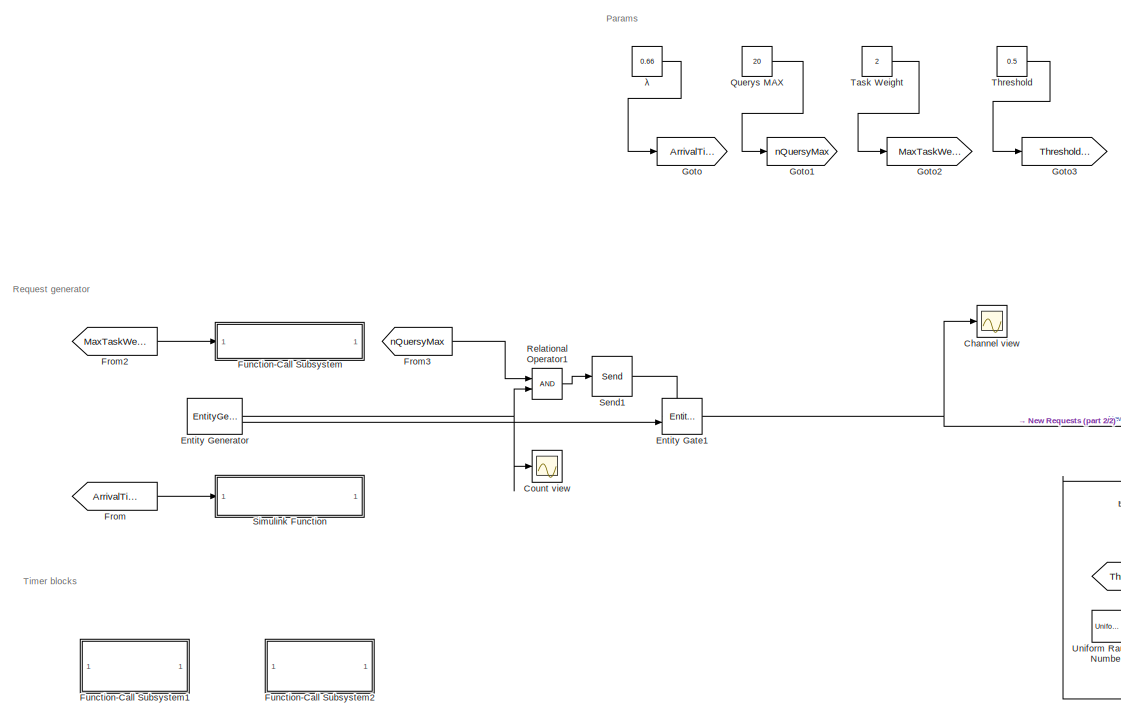
[diagram: root canvas - part 1/2, left side, full height]
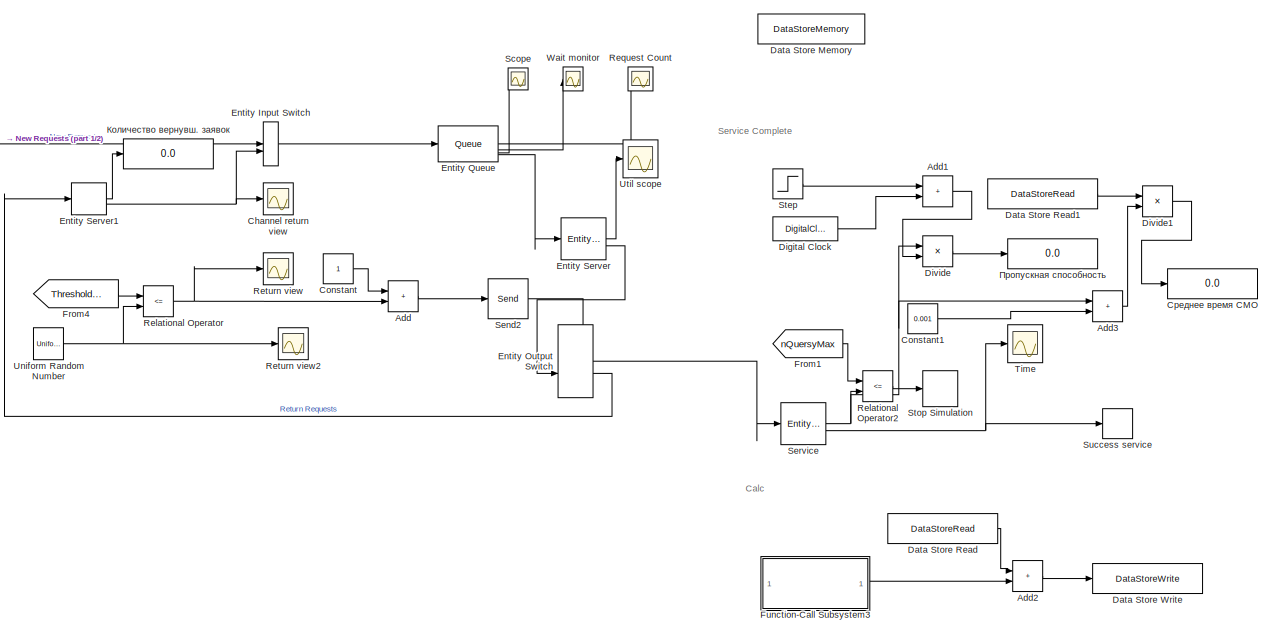
[diagram: root canvas - part 2/2, middle right region]
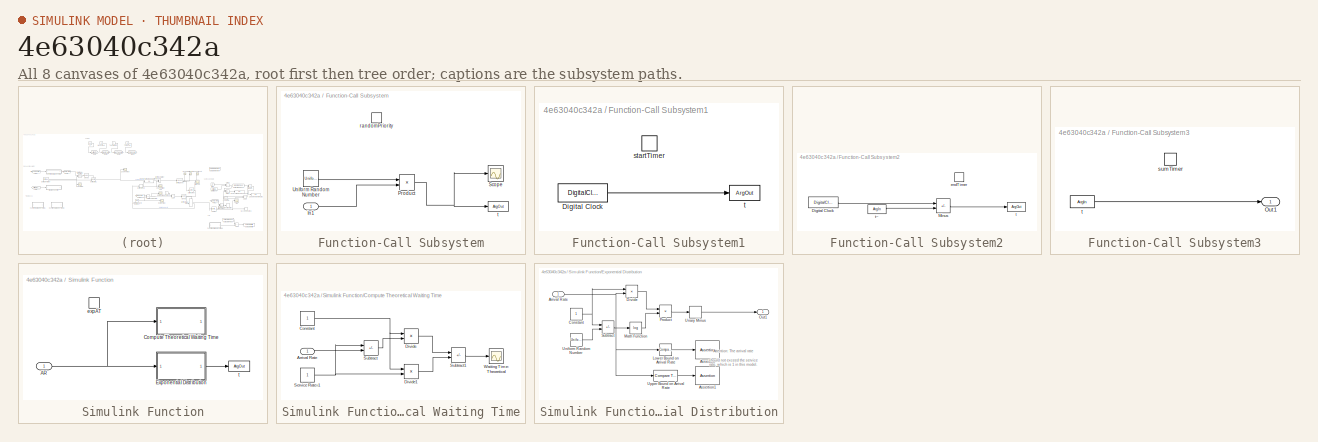
[diagram: thumbnail index - all 8 canvases of the model, root first then tree order]
MODEL slx_4e63040c342a
KIND model
CONFIG AbsTol = auto
CONFIG EnableMultiTasking = off
CONFIG FixedStep = auto
CONFIG MaxStep = auto
CONFIG MinStep = auto
CONFIG RelTol = 1e-3
CONFIG SampleTimeConstraint = Unconstrained
CONFIG SolverName = VariableStepAuto
CONFIG StartTime = 0.0
CONFIG StopTime = 60.0
BLOCK [Constant]  Querys MAX
  SampleTime = -1
  Value = 20
BLOCK [Constant]  λ
  SampleTime = -1
  Value = 0.66
BLOCK [Sum] Add
  IconShape = rectangular
BLOCK [Sum] Add1
  IconShape = rectangular
BLOCK [Sum] Add2
  IconShape = rectangular
BLOCK [Sum] Add3
  IconShape = rectangular
BLOCK [Scope] Channel return view
  Floating = off
  NumInputPorts = 1
  ScopeSpecificationString = Simulink.scopes.TimeScopeBlockCfg('CurrentConfiguration', extmgr.ConfigurationSet(extmgr.Configuration('Core','General UI',true),extmgr.Configuration('Core','Source UI',true),extmgr.Configuration('Sources','WiredSimulink',true,'DataLoggingVariableName','ScopeData7'),extmgr.Configuration('Visuals','Time Domain',true,'SerializedDisplays',{struct('MinYLimReal','-3.43386','MaxYLimReal','30.90477','YLa...<+1657ch>
BLOCK [Scope] Channel view
  Floating = off
  NumInputPorts = 1
  ScopeSpecificationString = Simulink.scopes.TimeScopeBlockCfg('CurrentConfiguration', extmgr.ConfigurationSet(extmgr.Configuration('Core','General UI',true),extmgr.Configuration('Core','Source UI',true),extmgr.Configuration('Sources','WiredSimulink',true,'DataLoggingVariableName','ScopeData4'),extmgr.Configuration('Visuals','Time Domain',true,'InputProcessing','FrameProcessing','SerializedDisplays',{struct('MinYLimReal','-4....<+1618ch>
BLOCK [Constant] Constant
  SampleTime = -1
BLOCK [Constant] Constant1
  Value = 0.001
BLOCK [Scope] Count view
  Floating = off
  NumInputPorts = 1
  ScopeSpecificationString = Simulink.scopes.TimeScopeBlockCfg('CurrentConfiguration', extmgr.ConfigurationSet(extmgr.Configuration('Core','General UI',true),extmgr.Configuration('Core','Source UI',true),extmgr.Configuration('Sources','WiredSimulink',true,'DataLoggingVariableName','ScopeData5'),extmgr.Configuration('Visuals','Time Domain',true,'SerializedDisplays',{struct('MinYLimReal','-1.75','MaxYLimReal','25.75','YLabelRea...<+1452ch>
BLOCK [DataStoreMemory] Data Store Memory
  DataStoreName = AVGSMO
  InitialValue = 0.1
  ShowAdditionalParam = off
  WriteAfterWriteMsg = warning
BLOCK [DataStoreRead] Data Store Read
  DataStoreName = AVGSMO
  IndexOptions = Index vector (dialog)
  Indices = 1
  OutputSizes = 1
BLOCK [DataStoreRead] Data Store Read1
  DataStoreName = AVGSMO
  IndexOptions = Index vector (dialog)
  Indices = 1
  OutputSizes = 1
BLOCK [DataStoreWrite] Data Store Write
  DataStoreName = AVGSMO
  IndexOptions = Index vector (dialog)
  Indices = 1
  OutputSizes = 1
BLOCK [DigitalClock] Digital Clock
BLOCK [Product] Divide
  Inputs = */
BLOCK [Product] Divide1
  Inputs = */
BLOCK [EntityGate] Entity Gate1
  InputPortMap = u0,u1
  InputPortMessageModes = m,m
  OpenGateAtSimulationStart = on
  OperatingMode = Release gate
  OutputPortMap = o0
  OutputPortMessageModes = m
BLOCK [EntityGenerator] Entity Generator
  AttributeInitialValue = 0|1|1
  AttributeName = entity|ServiceTime|SMOTime
  EntityType = Structured
  EntityTypeName = Entity
  GenerateAction = entity.SMOTime = startTimer();
  IntergenerationTimeAction = dt = expAT();
  NumberEntitiesDeparted = on
  OutputPortMap = o0,o3
  OutputPortMessageModes = n,m
  Period = 5
  TimeSource = MATLAB action
BLOCK [EntityInputSwitch] Entity Input Switch
  InputPortMap = u1,u2
  InputPortMessageModes = m,m
  OutputPortMap = o0
  OutputPortMessageModes = m
BLOCK [EntityOutputSwitch] Entity Output Switch
  InputPortMap = u0,u1
  InputPortMessageModes = m,m
  OutputPortMap = o0,o1
  OutputPortMessageModes = m,m
  SwitchAttributeName = Attribute1
  SwitchingCriterion = From control port
BLOCK [Queue] Entity Queue
  AverageQueueLength = on
  AverageWait = on
  Capacity = inf
  InputPortMap = u0
  InputPortMessageModes = m
  NumberEntitiesInBlock = on
  OutputPortMap = o1,o2,o3,o5
  OutputPortMessageModes = n,n,n,m
  PrioritySource = entitySys.priority
  SortingDirection = Descending
BLOCK [EntityServer] Entity Server
  Capacity = 1
  InputPortMap = u2
  InputPortMessageModes = m
  OutputPortMap = o5,o9
  OutputPortMessageModes = n,m
  ServiceTimeAction = dt = entitySys.priority;
  ServiceTimeSource = Attribute
  Utilization = on
BLOCK [EntityServer] Entity Server1
  Capacity = 1
  InputPortMap = u2
  InputPortMessageModes = m
  NumberEntitiesDeparted = on
  OutputPortMap = o0,o9
  OutputPortMessageModes = n,m
  ServiceTimeValue = 0
BLOCK [From] From
  GotoTag = ArrivalTime
BLOCK [From] From1
  GotoTag = nQuersyMax
BLOCK [From] From2
  GotoTag = MaxTaskWeight
BLOCK [From] From3
  GotoTag = nQuersyMax
BLOCK [From] From4
  GotoTag = ThresholdVal
BLOCK [SubSystem] Function-Call Subsystem
  TreatAsAtomicUnit = on
BLOCK [Inport] Function-Call Subsystem/In1
BLOCK [Product] Function-Call Subsystem/Product
BLOCK [Scope] Function-Call Subsystem/Scope
  Floating = off
  NumInputPorts = 1
  ScopeSpecificationString = Simulink.scopes.TimeScopeBlockCfg('CurrentConfiguration', extmgr.ConfigurationSet(extmgr.Configuration('Core','General UI',true),extmgr.Configuration('Core','Source UI',true),extmgr.Configuration('Sources','WiredSimulink',true,'DataLoggingVariableName','ScopeData3'),extmgr.Configuration('Visuals','Time Domain',true,'SerializedDisplays',{struct('MinYLimReal','-24.62549','MaxYLimReal','24.44194','YL...<+1461ch>
BLOCK [UniformRandomNumber] Function-Call Subsystem/Uniform Random Number
  Minimum = 0
  Seed = 12345
  VectorParams1D = off
BLOCK [TriggerPort] Function-Call Subsystem/randomPriority
  FunctionName = randomPriority
  IsSimulinkFunction = on
  StatesWhenEnabling = held
  TriggerType = function-call
  VariantControl = (inherit)
BLOCK [ArgOut] Function-Call Subsystem/t
  ArgumentName = t
  DisableCoverage = on
BLOCK [SubSystem] Function-Call Subsystem1
  TreatAsAtomicUnit = on
BLOCK [DigitalClock] Function-Call Subsystem1/Digital Clock
  SampleTime = -1
BLOCK [TriggerPort] Function-Call Subsystem1/startTimer
  FunctionName = startTimer
  IsSimulinkFunction = on
  StatesWhenEnabling = held
  TriggerType = function-call
  VariantControl = (inherit)
BLOCK [ArgOut] Function-Call Subsystem1/t
  ArgumentName = t
  DisableCoverage = on
BLOCK [SubSystem] Function-Call Subsystem2
  TreatAsAtomicUnit = on
BLOCK [DigitalClock] Function-Call Subsystem2/Digital Clock
  SampleTime = -1
BLOCK [Sum] Function-Call Subsystem2/Minus
  IconShape = rectangular
  Inputs = +-
BLOCK [TriggerPort] Function-Call Subsystem2/endTimer
  FunctionName = endTimer
  IsSimulinkFunction = on
  StatesWhenEnabling = held
  TriggerType = function-call
  VariantControl = (inherit)
BLOCK [ArgOut] Function-Call Subsystem2/t
  ArgumentName = t
  DisableCoverage = on
BLOCK [ArgIn] Function-Call Subsystem2/t~
  ArgumentName = t
BLOCK [SubSystem] Function-Call Subsystem3
  TreatAsAtomicUnit = on
BLOCK [Outport] Function-Call Subsystem3/Out1
BLOCK [TriggerPort] Function-Call Subsystem3/sumTimer
  FunctionName = sumTimer
  IsSimulinkFunction = on
  StatesWhenEnabling = held
  TriggerType = function-call
  VariantControl = (inherit)
BLOCK [ArgIn] Function-Call Subsystem3/t
  ArgumentName = t
BLOCK [Goto] Goto
  GotoTag = ArrivalTime
  IconDisplay = Tag and signal name
BLOCK [Goto] Goto1
  GotoTag = nQuersyMax
  IconDisplay = Tag and signal name
BLOCK [Goto] Goto2
  GotoTag = MaxTaskWeight
  IconDisplay = Tag and signal name
BLOCK [Goto] Goto3
  GotoTag = ThresholdVal
  IconDisplay = Tag and signal name
BLOCK [RelationalOperator] Relational Operator
  InputSameDT = off
  Operator = <=
  OutDataTypeStr = boolean
  RndMeth = Simplest
BLOCK [RelationalOperator] Relational Operator1
  InputSameDT = off
  OutDataTypeStr = boolean
  RndMeth = Simplest
BLOCK [RelationalOperator] Relational Operator2
  InputSameDT = off
  Operator = <=
  OutDataTypeStr = boolean
  RndMeth = Simplest
BLOCK [Scope] Request Count
  Floating = off
  NumInputPorts = 1
  ScopeSpecificationString = Simulink.scopes.TimeScopeBlockCfg('CurrentConfiguration', extmgr.ConfigurationSet(extmgr.Configuration('Core','General UI',true,'ShowMainToolbar',false,'ShowStatusbar',false),extmgr.Configuration('Core','Source UI',true),extmgr.Configuration('Sources','WiredSimulink',true,'DataLoggingVariableName','ScopeData2'),extmgr.Configuration('Visuals','Time Domain',true,'SerializedDisplays',{struct('MinYLim...<+1570ch>
BLOCK [Scope] Return view
  Floating = off
  NumInputPorts = 1
  ScopeSpecificationString = Simulink.scopes.TimeScopeBlockCfg('CurrentConfiguration', extmgr.ConfigurationSet(extmgr.Configuration('Core','General UI',true),extmgr.Configuration('Core','Source UI',true),extmgr.Configuration('Sources','WiredSimulink',true,'DataLoggingVariableName','ScopeData8'),extmgr.Configuration('Visuals','Time Domain',true,'SerializedDisplays',{struct('MinYLimReal','-0.125','MaxYLimReal','1.125','YLabelRe...<+1506ch>
BLOCK [Scope] Return view2
  Floating = off
  NumInputPorts = 1
  ScopeSpecificationString = Simulink.scopes.TimeScopeBlockCfg('CurrentConfiguration', extmgr.ConfigurationSet(extmgr.Configuration('Core','General UI',true),extmgr.Configuration('Core','Source UI',true),extmgr.Configuration('Sources','WiredSimulink',true,'DataLoggingVariableName','ScopeData10'),extmgr.Configuration('Visuals','Time Domain',true,'SerializedDisplays',{struct('MinYLimReal','-0.08214','MaxYLimReal','1.1087','YLab...<+1488ch>
BLOCK [Scope] Scope
  Floating = off
  NumInputPorts = 1
  ScopeSpecificationString = Simulink.scopes.TimeScopeBlockCfg('CurrentConfiguration', extmgr.ConfigurationSet(extmgr.Configuration('Core','General UI',true),extmgr.Configuration('Core','Source UI',true),extmgr.Configuration('Sources','WiredSimulink',true,'DataLoggingVariableName','ScopeData12'),extmgr.Configuration('Visuals','Time Domain',true,'SerializedDisplays',{struct('MinYLimReal','-0.18012','MaxYLimReal','1.6211','YLab...<+1459ch>
BLOCK [Send] Send1
  InputPortMap = u1
  OutputPortMessageModes = m
BLOCK [Send] Send2
  InputPortMap = u1
  OutputPortMessageModes = m
BLOCK [EntityServer] Service
  Capacity = 1
  EntryAction = entity.SMOTime = endTimer(entity.SMOTime);
  InputPortMap = u2
  InputPortMessageModes = m
  NumberEntitiesDeparted = on
  OutputPortMap = o0,o9
  OutputPortMessageModes = n,m
  ServiceCompleteAction = sumTimer(entity.SMOTime)
  ServiceTimeValue = 0
BLOCK [SubSystem] Simulink Function
  TreatAsAtomicUnit = on
BLOCK [Inport] Simulink Function/AR
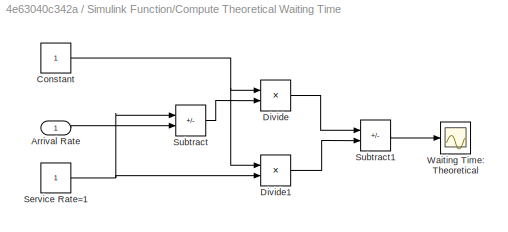
BLOCK [SubSystem] Simulink Function/Compute Theoretical Waiting Time
BLOCK [Inport] Simulink Function/Compute Theoretical Waiting Time/Arrival Rate
BLOCK [Constant] Simulink Function/Compute Theoretical Waiting Time/Constant
BLOCK [Product] Simulink Function/Compute Theoretical Waiting Time/Divide
  Inputs = */
BLOCK [Product] Simulink Function/Compute Theoretical Waiting Time/Divide1
  Inputs = */
BLOCK [Constant] Simulink Function/Compute Theoretical Waiting Time/Service Rate=1
  NameLocation = right
BLOCK [Sum] Simulink Function/Compute Theoretical Waiting Time/Subtract
  IconShape = rectangular
  Inputs = +-
BLOCK [Sum] Simulink Function/Compute Theoretical Waiting Time/Subtract1
  IconShape = rectangular
  Inputs = +-
BLOCK [Scope] Simulink Function/Compute Theoretical Waiting Time/Waiting Time: Theoretical
  Floating = off
  NumInputPorts = 1
  ScopeSpecificationString = Simulink.scopes.TimeScopeBlockCfg('CurrentConfiguration', extmgr.ConfigurationSet(extmgr.Configuration('Core','General UI',true,'ShowMainToolbar',false,'ShowStatusbar',false),extmgr.Configuration('Core','Source UI',true),extmgr.Configuration('Sources','WiredSimulink',true,'DataLoggingVariableName','ScopeData2'),extmgr.Configuration('Visuals','Time Domain',true,'SerializedDisplays',{struct('MinYLim...<+1456ch>
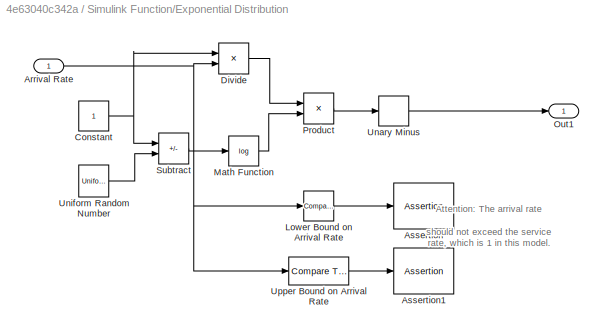
BLOCK [SubSystem] Simulink Function/Exponential Distribution
BLOCK [Inport] Simulink Function/Exponential Distribution/Arrival Rate
BLOCK [Assertion] Simulink Function/Exponential Distribution/Assertion
BLOCK [Assertion] Simulink Function/Exponential Distribution/Assertion1
BLOCK [Constant] Simulink Function/Exponential Distribution/Constant
BLOCK [Product] Simulink Function/Exponential Distribution/Divide
  Inputs = */
BLOCK [Reference] Simulink Function/Exponential Distribution/Lower Bound on Arrival Rate  REF=simulink/Logic and Bit
Operations/Compare
To Constant
  SourceBlock = simulink/Logic and Bit\nOperations/Compare\nTo Constant
  SourceType = Compare To Constant
BLOCK [Math] Simulink Function/Exponential Distribution/Math Function
  Operator = log
  SignedPower = on
BLOCK [Outport] Simulink Function/Exponential Distribution/Out1
BLOCK [Product] Simulink Function/Exponential Distribution/Product
  RndMeth = Zero
BLOCK [Sum] Simulink Function/Exponential Distribution/Subtract
  IconShape = rectangular
  Inputs = +-
BLOCK [UnaryMinus] Simulink Function/Exponential Distribution/Unary Minus
BLOCK [UniformRandomNumber] Simulink Function/Exponential Distribution/Uniform Random Number
  Minimum = 0
  Seed = 12345
BLOCK [Reference] Simulink Function/Exponential Distribution/Upper Bound on Arrival Rate   REF=simulink/Logic and Bit
Operations/Compare
To Constant
  SourceBlock = simulink/Logic and Bit\nOperations/Compare\nTo Constant
  SourceType = Compare To Constant
BLOCK [TriggerPort] Simulink Function/expAT
  FunctionName = expAT
  IsSimulinkFunction = on
  StatesWhenEnabling = held
  TriggerType = function-call
  VariantControl = Variant
BLOCK [ArgOut] Simulink Function/t
  ArgumentName = t
  DisableCoverage = on
BLOCK [Step] Step
  Before = 1
  SampleTime = 0
BLOCK [Stop] Stop Simulation
BLOCK [EntityTerminator] Success service
  InputPortMap = u0
  InputPortMessageModes = m
BLOCK [Constant] Task Weight
  SampleTime = -1
  Value = 2
BLOCK [Constant] Threshold
  SampleTime = -1
  Value = 0.5
BLOCK [Scope] Time
  Floating = off
  NumInputPorts = 1
  ScopeSpecificationString = Simulink.scopes.TimeScopeBlockCfg('CurrentConfiguration', extmgr.ConfigurationSet(extmgr.Configuration('Core','General UI',true,'ShowMainToolbar',false,'ShowStatusbar',false),extmgr.Configuration('Core','Source UI',true),extmgr.Configuration('Sources','WiredSimulink',true,'DataLoggingVariableName','ScopeData9'),extmgr.Configuration('Visuals','Time Domain',true,'SerializedDisplays',{struct('MinYLim...<+1780ch>
BLOCK [UniformRandomNumber] Uniform Random Number
  Minimum = 0
  SampleTime = 0
  Seed = 3748724
  VectorParams1D = off
BLOCK [Scope] Util scope
  Floating = off
  NumInputPorts = 1
  ScopeSpecificationString = Simulink.scopes.TimeScopeBlockCfg('CurrentConfiguration', extmgr.ConfigurationSet(extmgr.Configuration('Core','General UI',true,'ShowMainToolbar',false,'ShowStatusbar',false),extmgr.Configuration('Core','Source UI',true),extmgr.Configuration('Sources','WiredSimulink',true,'DataLoggingVariableName','ScopeData6'),extmgr.Configuration('Visuals','Time Domain',true,'SerializedDisplays',{struct('MinYLim...<+1581ch>
BLOCK [Scope] Wait monitor
  Floating = off
  NumInputPorts = 1
  ScopeSpecificationString = Simulink.scopes.TimeScopeBlockCfg('CurrentConfiguration', extmgr.ConfigurationSet(extmgr.Configuration('Core','General UI',true,'ShowMainToolbar',false,'ShowStatusbar',false),extmgr.Configuration('Core','Source UI',true),extmgr.Configuration('Sources','WiredSimulink',true,'DataLoggingVariableName','ScopeData1'),extmgr.Configuration('Visuals','Time Domain',true,'SerializedDisplays',{struct('MinYLim...<+1582ch>
BLOCK [Display] Количество вернувш. заявок
  Decimation = 1
BLOCK [Display] Пропускная способность
  Decimation = 1
BLOCK [Display] Среднее время СМО
  Decimation = 1
ANNOTATION (root): Calc
ANNOTATION (root): Params
ANNOTATION (root): Request generator
ANNOTATION (root): Service Complete
ANNOTATION (root): Timer blocks
ANNOTATION Simulink Function/Exponential Distribution: Attention: The arrival rate should not exceed the service rate, which is 1 in this model.
LINE  Querys MAX:1 -> Goto1:1
LINE  λ:1 -> Goto:1
LINE Add1:1 -> Divide:2
LINE Add2:1 -> Data Store Write:1
LINE Add3:1 -> Divide1:2
LINE Add:1 -> Send2:1
LINE Constant1:1 -> Add3:2
LINE Constant:1 -> Add:1
LINE Data Store Read1:1 -> Divide1:1
LINE Data Store Read:1 -> Add2:1
LINE Digital Clock:1 -> Add1:2
LINE Divide1:1 -> Среднее время СМО:1
LINE Divide:1 -> Пропускная способность:1
NET Entity Gate1:1 -> Channel view:1, Entity Input Switch:1
NET Entity Generator:1 -> Count view:1, Relational Operator1:2
LINE Entity Generator:2 -> Entity Gate1:2
LINE Entity Input Switch:1 -> Entity Queue:1
LINE Entity Output Switch:1 -> Service:1
LINE Entity Output Switch:2 -> Entity Server1:1
LINE Entity Queue:1 -> Request Count:1
LINE Entity Queue:2 -> Wait monitor:1
LINE Entity Queue:3 -> Scope:1
LINE Entity Queue:4 -> Entity Server:1
LINE Entity Server1:1 -> Количество вернувш. заявок:1
NET Entity Server1:2 -> Channel return view:1, Entity Input Switch:2
LINE Entity Server:1 -> Util scope:1
LINE Entity Server:2 -> Entity Output Switch:2
LINE From1:1 -> Relational Operator2:1
LINE From2:1 -> Function-Call Subsystem:1
LINE From3:1 -> Relational Operator1:1
LINE From4:1 -> Relational Operator:1
LINE From:1 -> Simulink Function:1
LINE Function-Call Subsystem/In1:1 -> Function-Call Subsystem/Product:2
NET Function-Call Subsystem/Product:1 -> Function-Call Subsystem/Scope:1, Function-Call Subsystem/t:1
LINE Function-Call Subsystem/Uniform Random Number:1 -> Function-Call Subsystem/Product:1
LINE Function-Call Subsystem1/Digital Clock:1 -> Function-Call Subsystem1/t:1
LINE Function-Call Subsystem2/Digital Clock:1 -> Function-Call Subsystem2/Minus:1
LINE Function-Call Subsystem2/Minus:1 -> Function-Call Subsystem2/t:1
LINE Function-Call Subsystem2/t~:1 -> Function-Call Subsystem2/Minus:2
LINE Function-Call Subsystem3/t:1 -> Function-Call Subsystem3/Out1:1
LINE Function-Call Subsystem3:1 -> Add2:2
LINE Relational Operator1:1 -> Send1:1
LINE Relational Operator2:1 -> Stop Simulation:1
NET Relational Operator:1 -> Add:2, Return view:1
LINE Send1:1 -> Entity Gate1:1
LINE Send2:1 -> Entity Output Switch:1
NET Service:1 -> Add3:1, Divide:1, Relational Operator2:2
NET Service:2 -> Success service:1, Time:1
NET Simulink Function/AR:1 -> Simulink Function/Compute Theoretical Waiting Time:1, Simulink Function/Exponential Distribution:1
LINE Simulink Function/Compute Theoretical Waiting Time/Arrival Rate:1 -> Simulink Function/Compute Theoretical Waiting Time/Subtract:2
NET Simulink Function/Compute Theoretical Waiting Time/Constant:1 -> Simulink Function/Compute Theoretical Waiting Time/Divide1:1, Simulink Function/Compute Theoretical Waiting Time/Divide:1
LINE Simulink Function/Compute Theoretical Waiting Time/Divide1:1 -> Simulink Function/Compute Theoretical Waiting Time/Subtract1:2
LINE Simulink Function/Compute Theoretical Waiting Time/Divide:1 -> Simulink Function/Compute Theoretical Waiting Time/Subtract1:1
NET Simulink Function/Compute Theoretical Waiting Time/Service Rate=1:1 -> Simulink Function/Compute Theoretical Waiting Time/Divide1:2, Simulink Function/Compute Theoretical Waiting Time/Subtract:1
LINE Simulink Function/Compute Theoretical Waiting Time/Subtract1:1 -> Simulink Function/Compute Theoretical Waiting Time/Waiting Time: Theoretical:1
LINE Simulink Function/Compute Theoretical Waiting Time/Subtract:1 -> Simulink Function/Compute Theoretical Waiting Time/Divide:2
NET Simulink Function/Exponential Distribution/Arrival Rate:1 -> Simulink Function/Exponential Distribution/Divide:2, Simulink Function/Exponential Distribution/Lower Bound on Arrival Rate:1, Simulink Function/Exponential Distribution/Upper Bound on Arrival Rate :1
NET Simulink Function/Exponential Distribution/Constant:1 -> Simulink Function/Exponential Distribution/Divide:1, Simulink Function/Exponential Distribution/Subtract:1
LINE Simulink Function/Exponential Distribution/Divide:1 -> Simulink Function/Exponential Distribution/Product:1
LINE Simulink Function/Exponential Distribution/Lower Bound on Arrival Rate:1 -> Simulink Function/Exponential Distribution/Assertion:1
LINE Simulink Function/Exponential Distribution/Math Function:1 -> Simulink Function/Exponential Distribution/Product:2
LINE Simulink Function/Exponential Distribution/Product:1 -> Simulink Function/Exponential Distribution/Unary Minus:1
LINE Simulink Function/Exponential Distribution/Subtract:1 -> Simulink Function/Exponential Distribution/Math Function:1
LINE Simulink Function/Exponential Distribution/Unary Minus:1 -> Simulink Function/Exponential Distribution/Out1:1
LINE Simulink Function/Exponential Distribution/Uniform Random Number:1 -> Simulink Function/Exponential Distribution/Subtract:2
LINE Simulink Function/Exponential Distribution/Upper Bound on Arrival Rate :1 -> Simulink Function/Exponential Distribution/Assertion1:1
LINE Simulink Function/Exponential Distribution:1 -> Simulink Function/t:1
LINE Step:1 -> Add1:1
LINE Task Weight:1 -> Goto2:1
LINE Threshold:1 -> Goto3:1
NET Uniform Random Number:1 -> Relational Operator:2, Return view2:1
note: NET lines group one-source signal fan-out (src -> all destinations, sorted); 1:1 wires keep LINE
